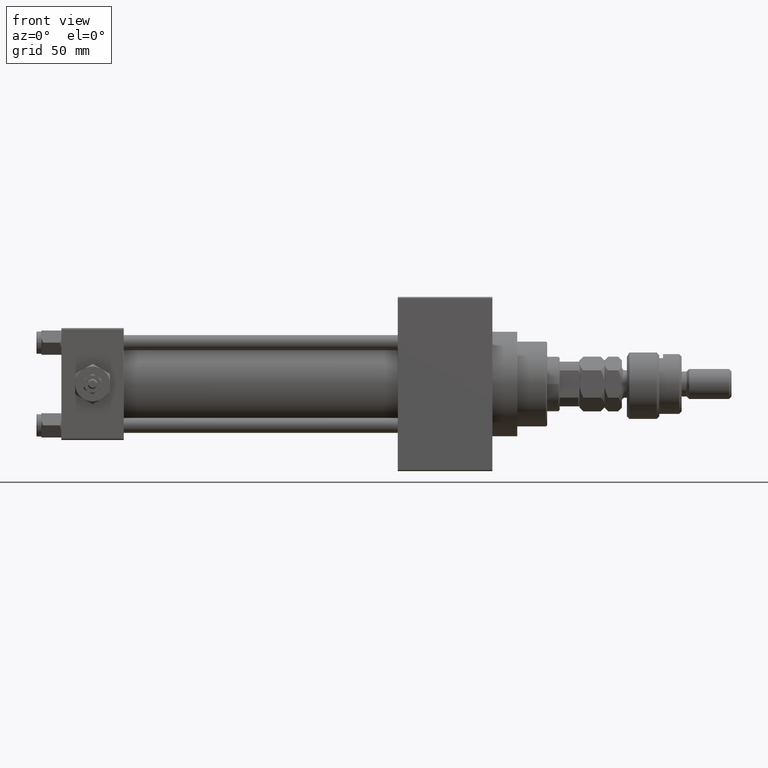
[diagram: clean part render]
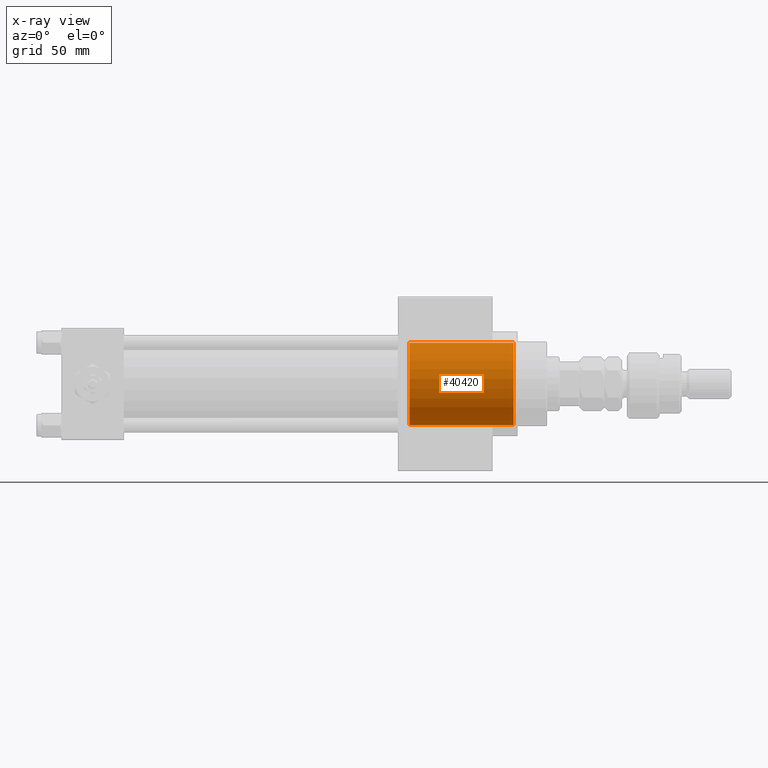
[diagram: x-ray — body ghosted, one internal face saturated and labeled with its STEP entity id]
A machine part, front view, then the same camera in x-ray: the body is ghosted and one INTERNAL B-rep face — a face not visible from any outside direction — is saturated and labeled: STEP entity #40420.
In plain terms, the highlighted cylindrical surface (partial cylindrical patch) has radius 16.5 mm, axis along (1, 0, 0).
Its self-contained STEP definition (entity closure, byte-faithful):
#23 = CARTESIAN_POINT ( 'NONE',  ( 181.4999999999999432, 0.000000000000000000, 0.000000000000000000 ) ) ;
#965 = EDGE_CURVE ( 'NONE', #5007, #23007, #1770, .T. ) ;
#1194 = CIRCLE ( 'NONE', #47724, 16.50000000000000000 ) ;
#1770 = CIRCLE ( 'NONE', #5057, 16.50000000000000000 ) ;
#2314 = CARTESIAN_POINT ( 'NONE',  ( 139.7400000000000375, 0.000000000000000000, 0.000000000000000000 ) ) ;
#3671 = LINE ( 'NONE', #7080, #37464 ) ;
#5007 = VERTEX_POINT ( 'NONE', #29619 ) ;
#5057 = AXIS2_PLACEMENT_3D ( 'NONE', #23, #15895, #11471 ) ;
#6377 = EDGE_LOOP ( 'NONE', ( #9021, #33407, #34657, #22816 ) ) ;
#7080 = CARTESIAN_POINT ( 'NONE',  ( 139.7400000000000375, 2.020667218593133100E-15, 16.50000000000000000 ) ) ;
#7457 = EDGE_CURVE ( 'NONE', #30228, #45157, #1194, .T. ) ;
#9021 = ORIENTED_EDGE ( 'NONE', *, *, #7457, .F. ) ;
#10979 = DIRECTION ( 'NONE',  ( 1.000000000000000000, -0.000000000000000000, -0.000000000000000000 ) ) ;
#11471 = DIRECTION ( 'NONE',  ( 0.000000000000000000, 0.000000000000000000, -1.000000000000000000 ) ) ;
#12496 = CARTESIAN_POINT ( 'NONE',  ( 181.4999999999999432, 0.000000000000000000, -16.50000000000000000 ) ) ;
#13179 = CARTESIAN_POINT ( 'NONE',  ( 139.7400000000000375, 0.000000000000000000, -16.50000000000000000 ) ) ;
#13782 = DIRECTION ( 'NONE',  ( 0.000000000000000000, 0.000000000000000000, -1.000000000000000000 ) ) ;
#15895 = DIRECTION ( 'NONE',  ( 1.000000000000000000, 0.000000000000000000, 0.000000000000000000 ) ) ;
#16919 = CYLINDRICAL_SURFACE ( 'NONE', #50361, 16.50000000000000000 ) ;
#18953 = LINE ( 'NONE', #26490, #30438 ) ;
#22816 = ORIENTED_EDGE ( 'NONE', *, *, #41643, .F. ) ;
#23007 = VERTEX_POINT ( 'NONE', #12496 ) ;
#24729 = FACE_OUTER_BOUND ( 'NONE', #6377, .T. ) ;
#26490 = CARTESIAN_POINT ( 'NONE',  ( 139.7400000000000375, 0.000000000000000000, -16.50000000000000000 ) ) ;
#27250 = DIRECTION ( 'NONE',  ( 1.000000000000000000, -0.000000000000000000, -0.000000000000000000 ) ) ;
#27488 = EDGE_CURVE ( 'NONE', #30228, #5007, #3671, .T. ) ;
#29619 = CARTESIAN_POINT ( 'NONE',  ( 181.4999999999999432, 2.020667218593133100E-15, 16.50000000000000000 ) ) ;
#29620 = DIRECTION ( 'NONE',  ( 1.000000000000000000, 0.000000000000000000, 0.000000000000000000 ) ) ;
#30228 = VERTEX_POINT ( 'NONE', #46431 ) ;
#30438 = VECTOR ( 'NONE', #27250, 1000.000000000000000 ) ;
#33407 = ORIENTED_EDGE ( 'NONE', *, *, #27488, .T. ) ;
#34657 = ORIENTED_EDGE ( 'NONE', *, *, #965, .T. ) ;
#37464 = VECTOR ( 'NONE', #10979, 1000.000000000000000 ) ;
#40420 = ADVANCED_FACE ( 'NONE', ( #24729 ), #16919, .F. ) ;
#41643 = EDGE_CURVE ( 'NONE', #45157, #23007, #18953, .T. ) ;
#45157 = VERTEX_POINT ( 'NONE', #13179 ) ;
#45267 = DIRECTION ( 'NONE',  ( 1.000000000000000000, -0.000000000000000000, -0.000000000000000000 ) ) ;
#46431 = CARTESIAN_POINT ( 'NONE',  ( 139.7400000000000375, 2.020667218593133100E-15, 16.50000000000000000 ) ) ;
#47724 = AXIS2_PLACEMENT_3D ( 'NONE', #2314, #29620, #49935 ) ;
#49429 = CARTESIAN_POINT ( 'NONE',  ( 139.7400000000000375, 0.000000000000000000, 0.000000000000000000 ) ) ;
#49935 = DIRECTION ( 'NONE',  ( 0.000000000000000000, 0.000000000000000000, -1.000000000000000000 ) ) ;
#50361 = AXIS2_PLACEMENT_3D ( 'NONE', #49429, #45267, #13782 ) ;